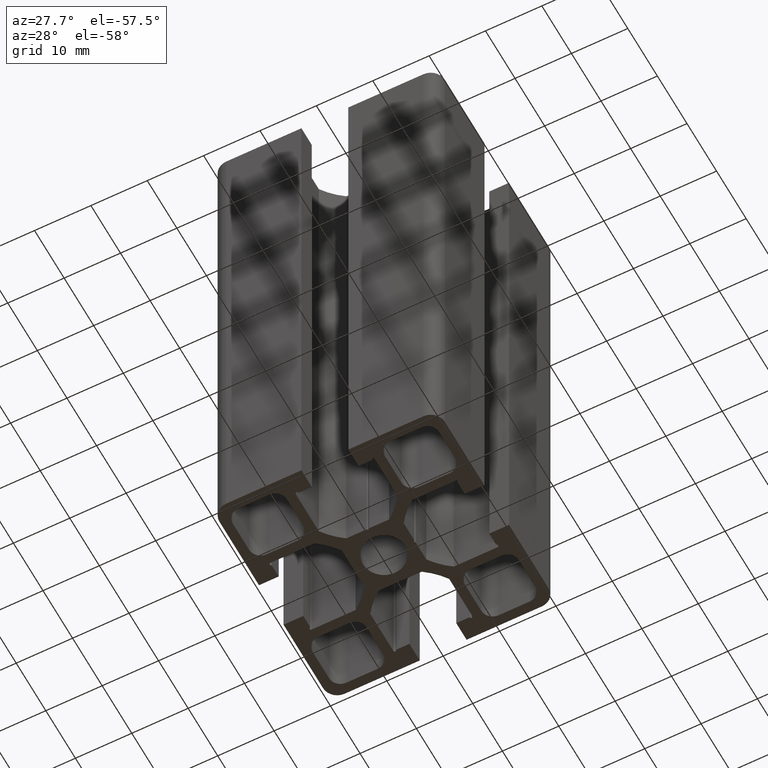
[diagram: clean part render]
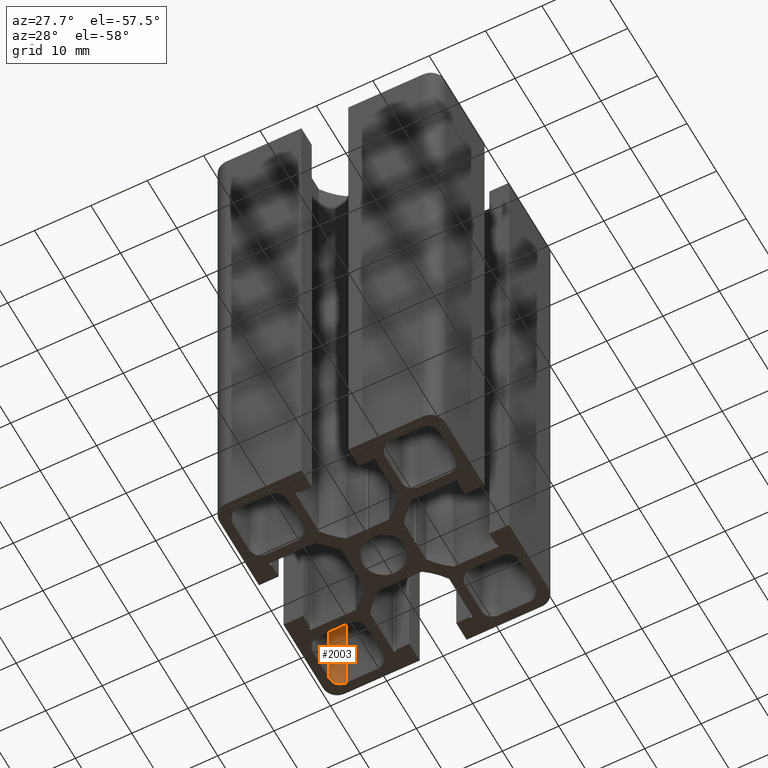
[diagram: same view with one face highlighted and labeled with its STEP entity id]
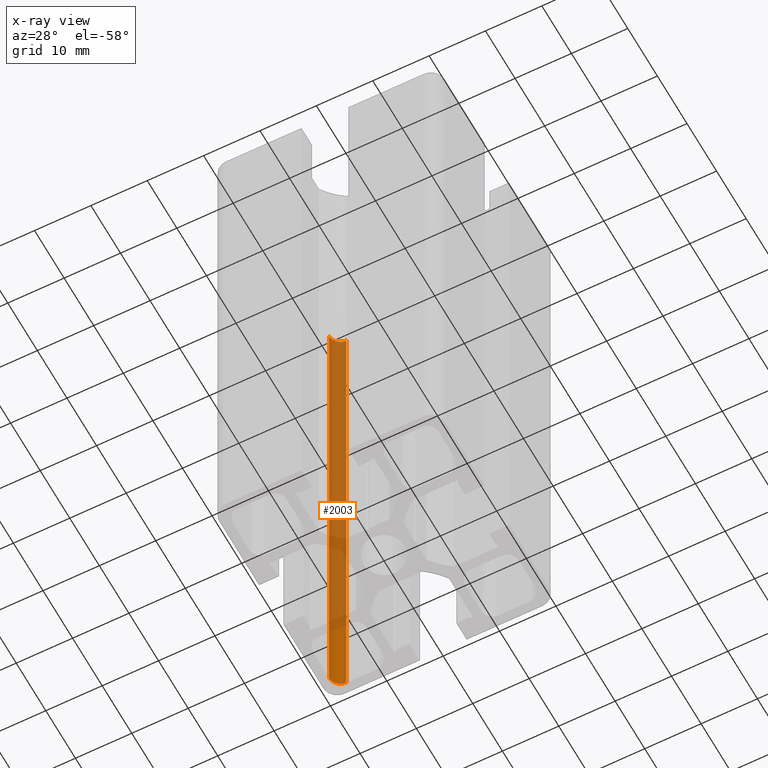
[diagram: x-ray of the same camera — body ghosted, the highlighted face saturated]
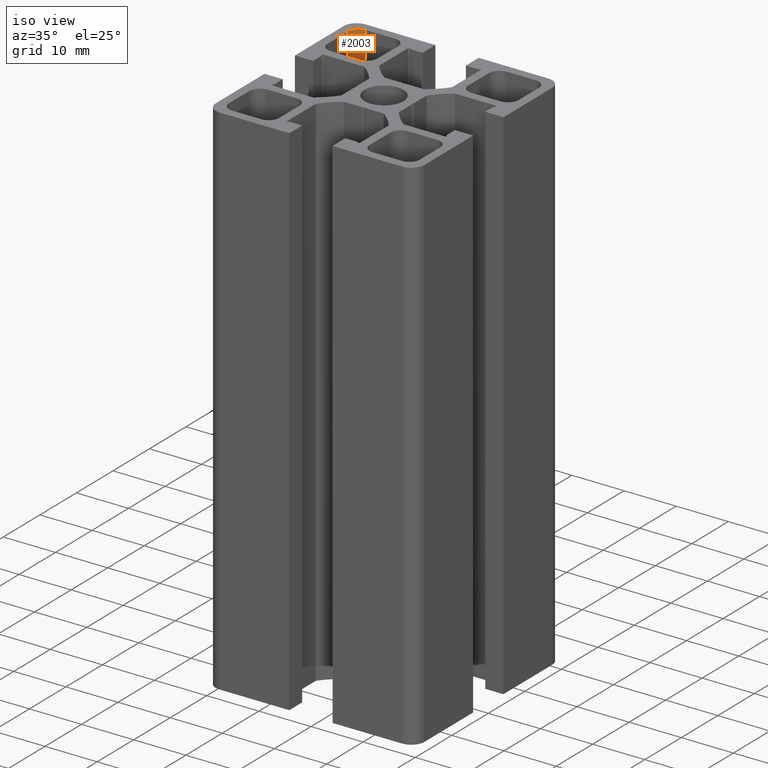
[diagram: same view with one face highlighted and labeled with its STEP entity id]
A machine part, auxiliary view. The second image highlights one B-rep face of the part: STEP entity #2003.
The next image is the same camera in x-ray: the body ghosted, the highlighted face saturated — about 84% of this face is hidden behind the body in this view.
A second angle (iso view) of the same face is appended — the face is thin or edge-on in the first view.
In plain terms, the highlighted cylindrical surface (edge-blend (fillet) strip) has radius 2 mm, axis along (0, 0, 1).
Its self-contained STEP definition (entity closure, byte-faithful):
#111=FACE_OUTER_BOUND('',#214,.T.);
#214=EDGE_LOOP('',(#1419,#1420,#1421,#1422));
#347=LINE('',#2966,#575);
#349=LINE('',#2972,#577);
#575=VECTOR('',#2380,100.);
#577=VECTOR('',#2386,100.);
#783=CIRCLE('',#2127,2.);
#784=CIRCLE('',#2128,2.);
#877=VERTEX_POINT('',#2963);
#878=VERTEX_POINT('',#2965);
#879=VERTEX_POINT('',#2969);
#880=VERTEX_POINT('',#2971);
#1097=EDGE_CURVE('',#877,#878,#347,.T.);
#1099=EDGE_CURVE('',#879,#877,#783,.T.);
#1100=EDGE_CURVE('',#879,#880,#349,.T.);
#1101=EDGE_CURVE('',#878,#880,#784,.T.);
#1419=ORIENTED_EDGE('',*,*,#1099,.F.);
#1420=ORIENTED_EDGE('',*,*,#1100,.T.);
#1421=ORIENTED_EDGE('',*,*,#1101,.F.);
#1422=ORIENTED_EDGE('',*,*,#1097,.F.);
#1956=CYLINDRICAL_SURFACE('',#2126,2.);
#2003=ADVANCED_FACE('',(#111),#1956,.F.);
#2126=AXIS2_PLACEMENT_3D('',#2968,#2382,#2383);
#2127=AXIS2_PLACEMENT_3D('',#2970,#2384,#2385);
#2128=AXIS2_PLACEMENT_3D('',#2973,#2387,#2388);
#2380=DIRECTION('',(0.,0.,1.));
#2382=DIRECTION('center_axis',(0.,0.,1.));
#2383=DIRECTION('ref_axis',(-8.88178419700128E-15,-1.,0.));
#2384=DIRECTION('center_axis',(0.,0.,1.));
#2385=DIRECTION('ref_axis',(-8.88178419700128E-15,-1.,0.));
#2386=DIRECTION('',(0.,0.,1.));
#2387=DIRECTION('center_axis',(0.,0.,-1.));
#2388=DIRECTION('ref_axis',(-8.88178419700128E-15,-1.,0.));
#2963=CARTESIAN_POINT('',(-18.3000000000002,16.3000000000001,0.));
#2965=CARTESIAN_POINT('',(-18.3000000000002,16.3000000000001,100.));
#2966=CARTESIAN_POINT('',(-18.3000000000002,16.3000000000001,0.));
#2968=CARTESIAN_POINT('Origin',(-16.3000000000002,16.3000000000001,0.));
#2969=CARTESIAN_POINT('',(-16.3000000000002,18.3000000000001,0.));
#2970=CARTESIAN_POINT('Origin',(-16.3000000000002,16.3000000000001,0.));
#2971=CARTESIAN_POINT('',(-16.3000000000002,18.3000000000001,100.));
#2972=CARTESIAN_POINT('',(-16.3000000000002,18.3000000000001,0.));
#2973=CARTESIAN_POINT('Origin',(-16.3000000000002,16.3000000000001,100.));